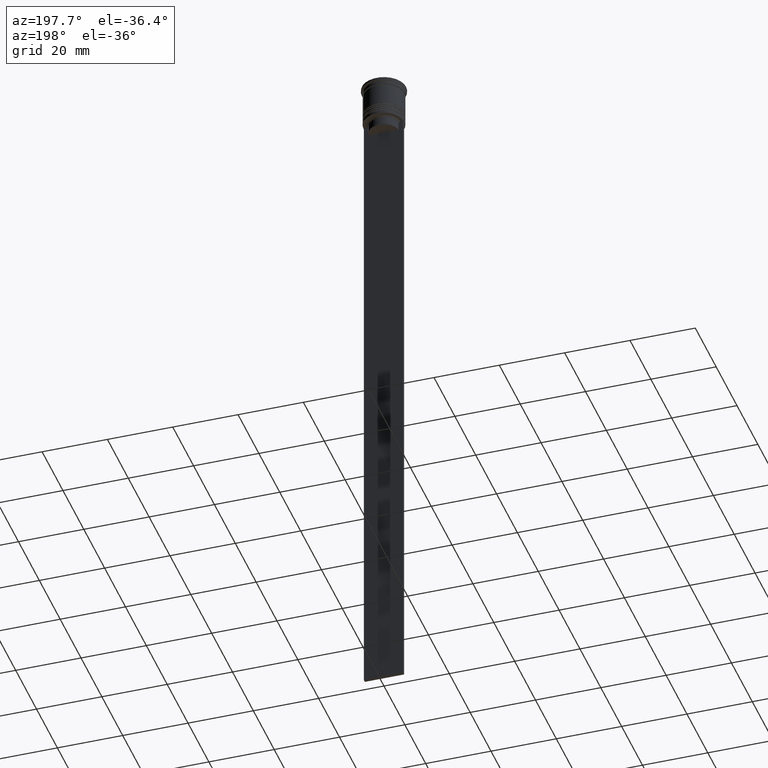
[diagram: clean part render]
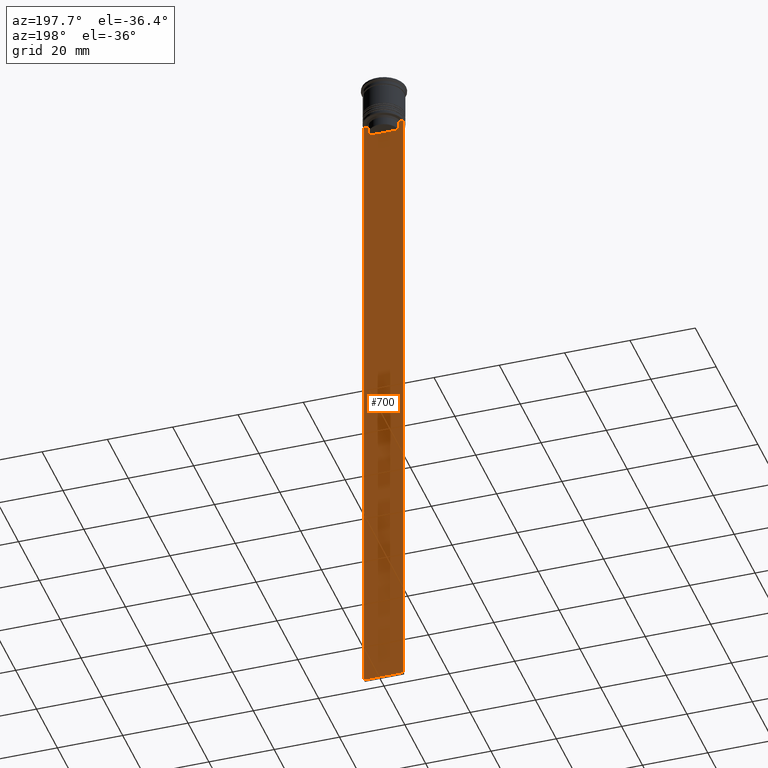
[diagram: same view with one face highlighted and labeled with its STEP entity id]
A machine part, auxiliary view. The second image highlights one B-rep face of the part: STEP entity #700.
In plain terms, the highlighted planar face has unit normal (0, -1, -0).
Its self-contained STEP definition (entity closure, byte-faithful):
#22 = CARTESIAN_POINT ( 'NONE',  ( 4.790630799407576745, 0.4999999999999982792, -12.83338098686239093 ) ) ;
#56 = VERTEX_POINT ( 'NONE', #1755 ) ;
#91 = VERTEX_POINT ( 'NONE', #723 ) ;
#116 = ORIENTED_EDGE ( 'NONE', *, *, #895, .T. ) ;
#180 = EDGE_CURVE ( 'NONE', #808, #2198, #195, .T. ) ;
#195 = B_SPLINE_CURVE_WITH_KNOTS ( 'NONE', 3,
 ( #203, #22, #744, #2093 ),
 .UNSPECIFIED., .F., .F.,
 ( 4, 4 ),
 ( 0.02203698174624552433, 0.02275222543365896036 ),
 .UNSPECIFIED. ) ;
#203 = CARTESIAN_POINT ( 'NONE',  ( 4.623040125285526436, 0.4999999999999982792, -13.00000000000000178 ) ) ;
#206 = ORIENTED_EDGE ( 'NONE', *, *, #180, .T. ) ;
#243 = CARTESIAN_POINT ( 'NONE',  ( -5.125670687822231564, 0.4999999999999982792, -12.50000000000000000 ) ) ;
#255 = LINE ( 'NONE', #1896, #866 ) ;
#289 = CARTESIAN_POINT ( 'NONE',  ( -4.623040125285526436, 0.4999999999999982792, 0.000000000000000000 ) ) ;
#296 = EDGE_CURVE ( 'NONE', #879, #2190, #1183, .T. ) ;
#307 = EDGE_CURVE ( 'NONE', #1691, #331, #463, .T. ) ;
#331 = VERTEX_POINT ( 'NONE', #492 ) ;
#334 = VECTOR ( 'NONE', #1754, 1000.000000000000000 ) ;
#335 = VECTOR ( 'NONE', #2076, 1000.000000000000000 ) ;
#350 = ORIENTED_EDGE ( 'NONE', *, *, #1105, .F. ) ;
#365 = VECTOR ( 'NONE', #1742, 1000.000000000000000 ) ;
#393 = VERTEX_POINT ( 'NONE', #453 ) ;
#426 = EDGE_CURVE ( 'NONE', #91, #1870, #1194, .T. ) ;
#453 = CARTESIAN_POINT ( 'NONE',  ( 6.000000000000016875, 0.4999999999999982792, -12.50000000000000000 ) ) ;
#463 = LINE ( 'NONE', #2257, #1576 ) ;
#472 = CARTESIAN_POINT ( 'NONE',  ( 4.623040125285526436, 0.4999999999999982792, -13.00000000000000178 ) ) ;
#492 = CARTESIAN_POINT ( 'NONE',  ( -5.999999999999983125, 0.4999999999999982792, -212.5000000000000284 ) ) ;
#510 = CARTESIAN_POINT ( 'NONE',  ( 6.000000000000016875, 0.4999999999999982792, -212.5000000000000284 ) ) ;
#533 = CARTESIAN_POINT ( 'NONE',  ( -5.125670687822231564, 0.4999999999999982792, -12.50000000000000000 ) ) ;
#639 = VECTOR ( 'NONE', #1881, 1000.000000000000000 ) ;
#674 = ORIENTED_EDGE ( 'NONE', *, *, #2032, .T. ) ;
#696 = EDGE_CURVE ( 'NONE', #2190, #56, #996, .T. ) ;
#700 = ADVANCED_FACE ( 'NONE', ( #2229 ), #1666, .F. ) ;
#723 = CARTESIAN_POINT ( 'NONE',  ( -4.623040125285526436, 0.4999999999999987232, -15.50000000000000000 ) ) ;
#744 = CARTESIAN_POINT ( 'NONE',  ( 4.958169719475987058, 0.4999999999999982792, -12.66670967060858111 ) ) ;
#751 = ORIENTED_EDGE ( 'NONE', *, *, #307, .T. ) ;
#775 = ORIENTED_EDGE ( 'NONE', *, *, #696, .T. ) ;
#782 = LINE ( 'NONE', #289, #639 ) ;
#807 = CARTESIAN_POINT ( 'NONE',  ( 6.000000000000016875, 0.4999999999999982792, -12.50000000000000000 ) ) ;
#808 = VERTEX_POINT ( 'NONE', #472 ) ;
#816 = VECTOR ( 'NONE', #1585, 1000.000000000000000 ) ;
#826 = EDGE_CURVE ( 'NONE', #2198, #393, #1180, .T. ) ;
#866 = VECTOR ( 'NONE', #994, 1000.000000000000000 ) ;
#879 = VERTEX_POINT ( 'NONE', #2320 ) ;
#887 = CARTESIAN_POINT ( 'NONE',  ( 5.125670687822231564, 0.4999999999999982792, -12.50000000000000000 ) ) ;
#895 = EDGE_CURVE ( 'NONE', #1870, #808, #1086, .T. ) ;
#935 = CARTESIAN_POINT ( 'NONE',  ( -4.790630915080666519, 0.4999999999999982792, -12.83338087185995313 ) ) ;
#994 = DIRECTION ( 'NONE',  ( 0.000000000000000000, 0.000000000000000000, -1.000000000000000000 ) ) ;
#996 = B_SPLINE_CURVE_WITH_KNOTS ( 'NONE', 3,
 ( #243, #1853, #935, #1512 ),
 .UNSPECIFIED., .F., .F.,
 ( 4, 4 ),
 ( 0.008759809102772707357, 0.009468778395565351919 ),
 .UNSPECIFIED. ) ;
#1086 = LINE ( 'NONE', #1775, #816 ) ;
#1105 = EDGE_CURVE ( 'NONE', #879, #331, #1365, .T. ) ;
#1170 = ORIENTED_EDGE ( 'NONE', *, *, #2314, .T. ) ;
#1180 = LINE ( 'NONE', #807, #335 ) ;
#1183 = LINE ( 'NONE', #1399, #334 ) ;
#1194 = LINE ( 'NONE', #1914, #365 ) ;
#1316 = DIRECTION ( 'NONE',  ( 0.000000000000000000, -1.000000000000000000, -0.000000000000000000 ) ) ;
#1365 = LINE ( 'NONE', #2056, #2062 ) ;
#1399 = CARTESIAN_POINT ( 'NONE',  ( 6.000000000000016875, 0.4999999999999982792, -12.50000000000000000 ) ) ;
#1507 = ORIENTED_EDGE ( 'NONE', *, *, #426, .T. ) ;
#1512 = CARTESIAN_POINT ( 'NONE',  ( -4.623040125285526436, 0.4999999999999982792, -13.00000000000000178 ) ) ;
#1576 = VECTOR ( 'NONE', #1727, 1000.000000000000000 ) ;
#1585 = DIRECTION ( 'NONE',  ( -0.000000000000000000, -0.000000000000000000, 1.000000000000000000 ) ) ;
#1641 = DIRECTION ( 'NONE',  ( 0.000000000000000000, 0.000000000000000000, -1.000000000000000000 ) ) ;
#1666 = PLANE ( 'NONE',  #2142 ) ;
#1691 = VERTEX_POINT ( 'NONE', #510 ) ;
#1727 = DIRECTION ( 'NONE',  ( -1.000000000000000000, 0.000000000000000000, 0.000000000000000000 ) ) ;
#1742 = DIRECTION ( 'NONE',  ( 1.000000000000000000, 0.000000000000000000, 0.000000000000000000 ) ) ;
#1754 = DIRECTION ( 'NONE',  ( 1.000000000000000000, 0.000000000000000000, 0.000000000000000000 ) ) ;
#1755 = CARTESIAN_POINT ( 'NONE',  ( -4.623040125285526436, 0.4999999999999982792, -13.00000000000000178 ) ) ;
#1763 = ORIENTED_EDGE ( 'NONE', *, *, #296, .T. ) ;
#1775 = CARTESIAN_POINT ( 'NONE',  ( 4.623040125285526436, 0.4999999999999982792, 0.000000000000000000 ) ) ;
#1839 = CARTESIAN_POINT ( 'NONE',  ( 4.623040125285526436, 0.4999999999999987232, -15.50000000000000000 ) ) ;
#1853 = CARTESIAN_POINT ( 'NONE',  ( -4.958169823806762189, 0.4999999999999982792, -12.66670956677067750 ) ) ;
#1870 = VERTEX_POINT ( 'NONE', #1839 ) ;
#1881 = DIRECTION ( 'NONE',  ( 0.000000000000000000, 0.000000000000000000, -1.000000000000000000 ) ) ;
#1892 = ORIENTED_EDGE ( 'NONE', *, *, #826, .T. ) ;
#1896 = CARTESIAN_POINT ( 'NONE',  ( 6.000000000000016875, 0.4999999999999982792, -0.4584054212077061097 ) ) ;
#1914 = CARTESIAN_POINT ( 'NONE',  ( 0.000000000000000000, 0.4999999999999987232, -15.50000000000000000 ) ) ;
#1992 = EDGE_LOOP ( 'NONE', ( #1763, #775, #1170, #1507, #116, #206, #1892, #674, #751, #350 ) ) ;
#2032 = EDGE_CURVE ( 'NONE', #393, #1691, #255, .T. ) ;
#2049 = CARTESIAN_POINT ( 'NONE',  ( 6.000000000000016875, 0.4999999999999982792, -0.4584054212077061097 ) ) ;
#2056 = CARTESIAN_POINT ( 'NONE',  ( -5.999999999999983125, 0.4999999999999982792, -0.4584054212077061097 ) ) ;
#2062 = VECTOR ( 'NONE', #2246, 1000.000000000000000 ) ;
#2076 = DIRECTION ( 'NONE',  ( 1.000000000000000000, 0.000000000000000000, 0.000000000000000000 ) ) ;
#2093 = CARTESIAN_POINT ( 'NONE',  ( 5.125670687822231564, 0.4999999999999982792, -12.50000000000000000 ) ) ;
#2142 = AXIS2_PLACEMENT_3D ( 'NONE', #2049, #1316, #1641 ) ;
#2190 = VERTEX_POINT ( 'NONE', #533 ) ;
#2198 = VERTEX_POINT ( 'NONE', #887 ) ;
#2229 = FACE_OUTER_BOUND ( 'NONE', #1992, .T. ) ;
#2246 = DIRECTION ( 'NONE',  ( 0.000000000000000000, 0.000000000000000000, -1.000000000000000000 ) ) ;
#2257 = CARTESIAN_POINT ( 'NONE',  ( 6.000000000000016875, 0.4999999999999982792, -212.5000000000000284 ) ) ;
#2314 = EDGE_CURVE ( 'NONE', #56, #91, #782, .T. ) ;
#2320 = CARTESIAN_POINT ( 'NONE',  ( -5.999999999999983125, 0.4999999999999985012, -12.50000000000000000 ) ) ;